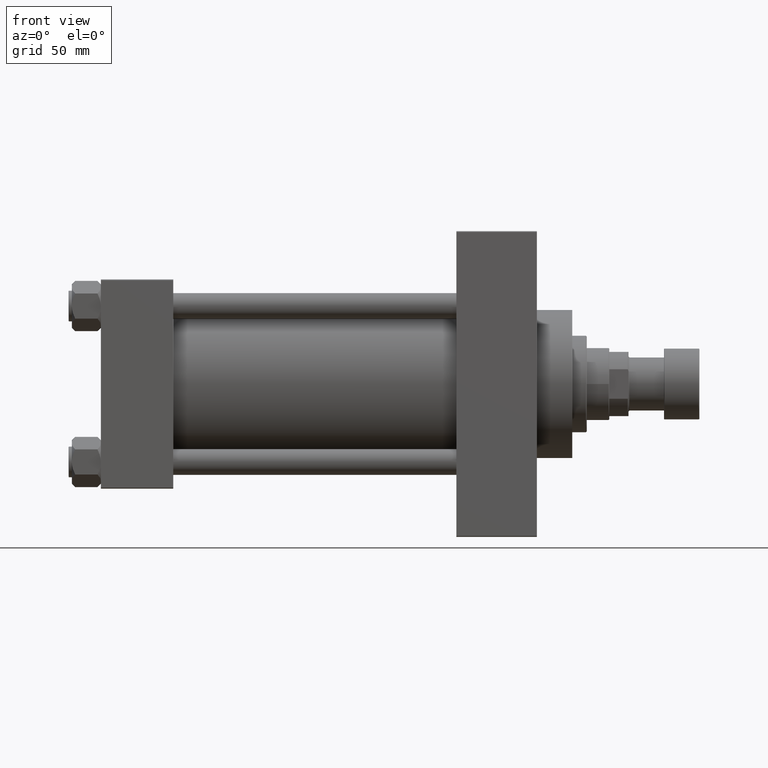
[diagram: clean part render]
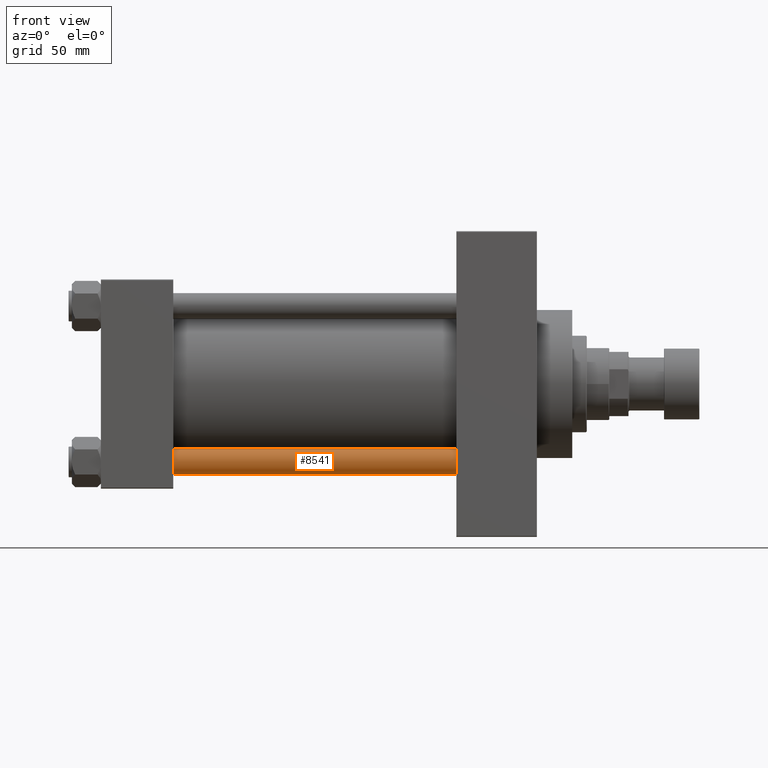
[diagram: same view with one face highlighted and labeled with its STEP entity id]
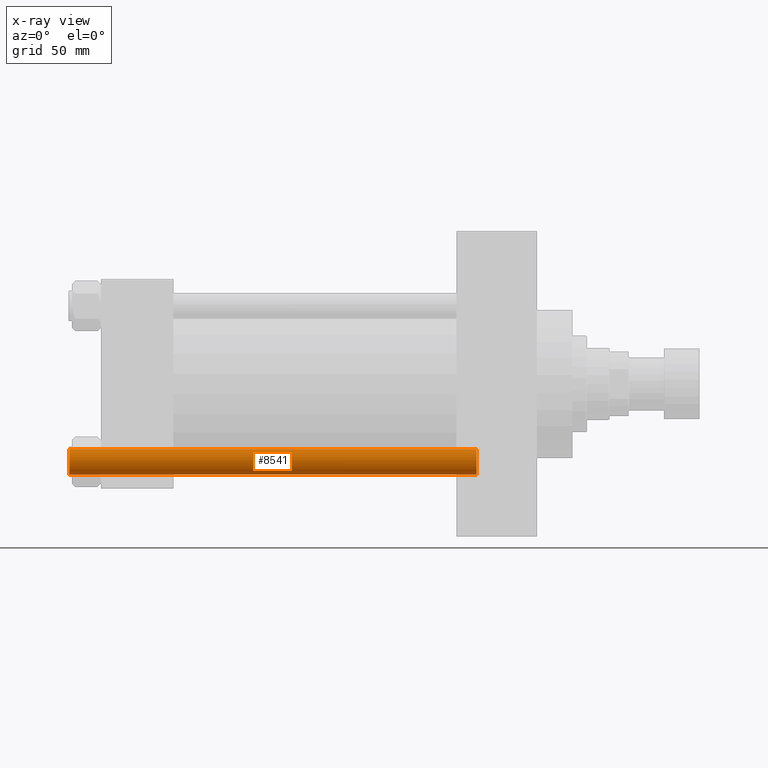
[diagram: x-ray of the same camera — body ghosted, the highlighted face saturated]
A machine part, front view. The second image highlights one B-rep face of the part: STEP entity #8541.
The next image is the same camera in x-ray: the body ghosted, the highlighted face saturated — about 0% of this face is hidden behind the body in this view.
In plain terms, the highlighted cylindrical surface (edge-blend (fillet) strip) has radius 8 mm, axis along (1, 0, 0).
Its self-contained STEP definition (entity closure, byte-faithful):
#3929 = LINE ( 'NONE', #41360, #13429 ) ;
#5021 = VECTOR ( 'NONE', #17263, 1000.000000000000000 ) ;
#8033 = DIRECTION ( 'NONE',  ( -0.000000000000000000, -0.000000000000000000, -1.000000000000000000 ) ) ;
#8246 = CARTESIAN_POINT ( 'NONE',  ( 8.000000000000000000, 9.797174393178825657E-16, 253.5000000000000568 ) ) ;
#8541 = ADVANCED_FACE ( 'NONE', ( #16206 ), #27383, .T. ) ;
#8592 = VERTEX_POINT ( 'NONE', #10104 ) ;
#9747 = AXIS2_PLACEMENT_3D ( 'NONE', #42812, #13620, #17518 ) ;
#9958 = EDGE_CURVE ( 'NONE', #21903, #14810, #36869, .T. ) ;
#10104 = CARTESIAN_POINT ( 'NONE',  ( 8.000000000000000000, 9.797174393178825657E-16, 0.5000000000000004441 ) ) ;
#12921 = DIRECTION ( 'NONE',  ( 0.000000000000000000, 0.000000000000000000, -1.000000000000000000 ) ) ;
#13429 = VECTOR ( 'NONE', #8033, 1000.000000000000000 ) ;
#13620 = DIRECTION ( 'NONE',  ( -0.000000000000000000, -0.000000000000000000, 1.000000000000000000 ) ) ;
#14810 = VERTEX_POINT ( 'NONE', #8246 ) ;
#14943 = EDGE_LOOP ( 'NONE', ( #48075, #41847, #22000, #29092 ) ) ;
#15287 = CARTESIAN_POINT ( 'NONE',  ( -8.000000000000000000, 0.000000000000000000, 253.5000000000000568 ) ) ;
#16206 = FACE_OUTER_BOUND ( 'NONE', #14943, .T. ) ;
#17263 = DIRECTION ( 'NONE',  ( -0.000000000000000000, -0.000000000000000000, -1.000000000000000000 ) ) ;
#17369 = AXIS2_PLACEMENT_3D ( 'NONE', #30697, #12921, #46492 ) ;
#17518 = DIRECTION ( 'NONE',  ( 1.000000000000000000, 0.000000000000000000, 0.000000000000000000 ) ) ;
#20581 = CARTESIAN_POINT ( 'NONE',  ( 0.000000000000000000, 0.000000000000000000, 254.0000000000000000 ) ) ;
#21903 = VERTEX_POINT ( 'NONE', #15287 ) ;
#22000 = ORIENTED_EDGE ( 'NONE', *, *, #46197, .T. ) ;
#25164 = AXIS2_PLACEMENT_3D ( 'NONE', #20581, #38568, #31280 ) ;
#27383 = CYLINDRICAL_SURFACE ( 'NONE', #25164, 8.000000000000000000 ) ;
#29092 = ORIENTED_EDGE ( 'NONE', *, *, #36707, .F. ) ;
#30697 = CARTESIAN_POINT ( 'NONE',  ( 0.000000000000000000, 0.000000000000000000, 253.5000000000000568 ) ) ;
#31280 = DIRECTION ( 'NONE',  ( -1.000000000000000000, 0.000000000000000000, 0.000000000000000000 ) ) ;
#31517 = CIRCLE ( 'NONE', #9747, 8.000000000000000000 ) ;
#31616 = CARTESIAN_POINT ( 'NONE',  ( 8.000000000000000000, 9.797174393178825657E-16, 254.0000000000000000 ) ) ;
#32409 = VERTEX_POINT ( 'NONE', #42290 ) ;
#36707 = EDGE_CURVE ( 'NONE', #21903, #32409, #3929, .T. ) ;
#36869 = CIRCLE ( 'NONE', #17369, 8.000000000000000000 ) ;
#38568 = DIRECTION ( 'NONE',  ( -0.000000000000000000, -0.000000000000000000, -1.000000000000000000 ) ) ;
#41360 = CARTESIAN_POINT ( 'NONE',  ( -8.000000000000000000, 0.000000000000000000, 254.0000000000000000 ) ) ;
#41847 = ORIENTED_EDGE ( 'NONE', *, *, #45080, .T. ) ;
#42290 = CARTESIAN_POINT ( 'NONE',  ( -8.000000000000000000, 0.000000000000000000, 0.5000000000000004441 ) ) ;
#42812 = CARTESIAN_POINT ( 'NONE',  ( 0.000000000000000000, 0.000000000000000000, 0.5000000000000004441 ) ) ;
#45080 = EDGE_CURVE ( 'NONE', #14810, #8592, #47182, .T. ) ;
#46197 = EDGE_CURVE ( 'NONE', #8592, #32409, #31517, .T. ) ;
#46492 = DIRECTION ( 'NONE',  ( 1.000000000000000000, 0.000000000000000000, 0.000000000000000000 ) ) ;
#47182 = LINE ( 'NONE', #31616, #5021 ) ;
#48075 = ORIENTED_EDGE ( 'NONE', *, *, #9958, .T. ) ;